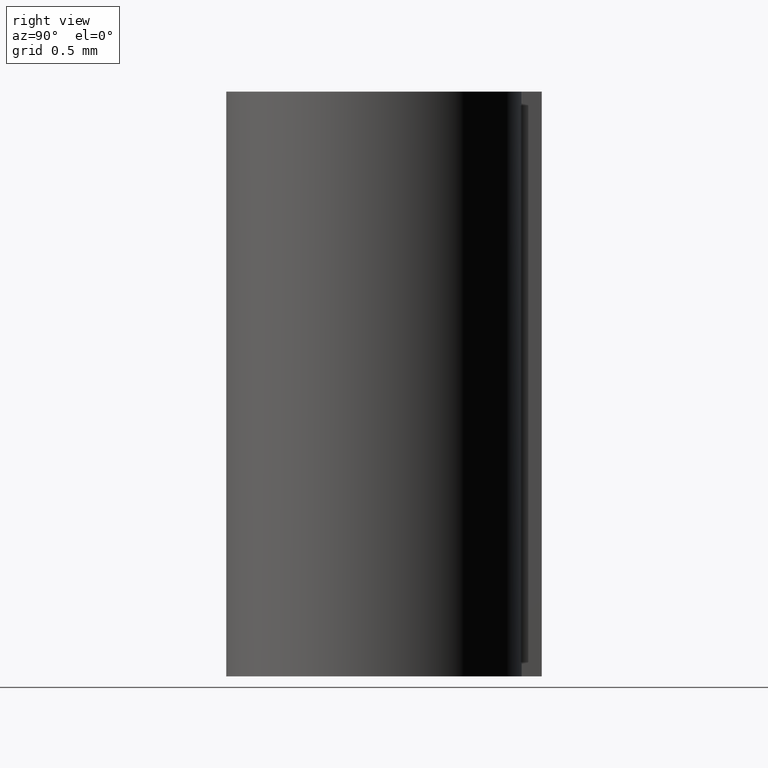
[diagram: clean part render]
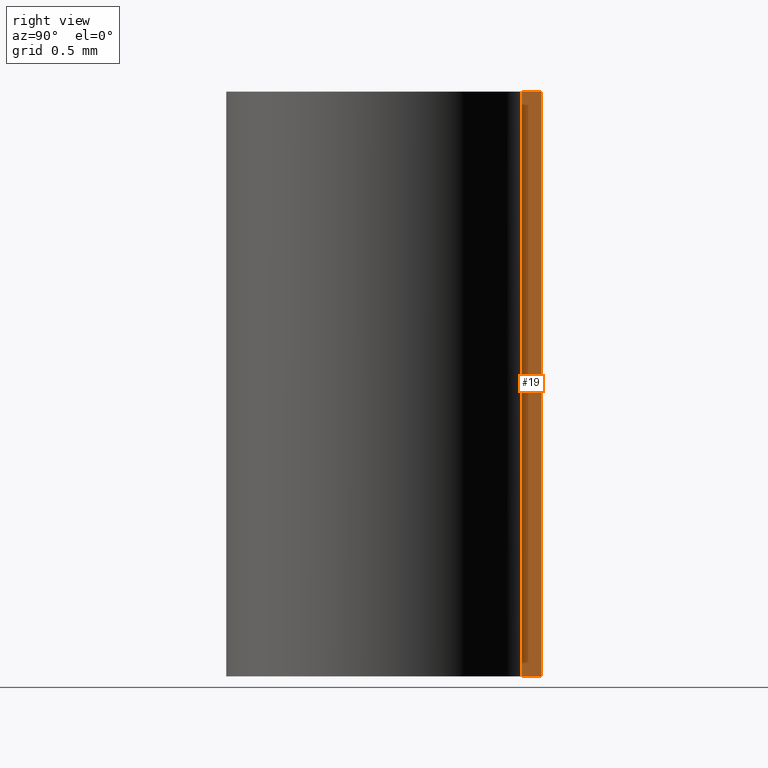
[diagram: same view with one face highlighted and labeled with its STEP entity id]
A machine part, right view. The second image highlights one B-rep face of the part: STEP entity #19.
In plain terms, the highlighted planar face has unit normal (0.9998, 0.0196, -0).
Its self-contained STEP definition (entity closure, byte-faithful):
#19 = ADVANCED_FACE ( 'NONE', ( #948 ), #189, .T. ) ;
#29 = EDGE_LOOP ( 'NONE', ( #711, #98, #404, #87 ) ) ;
#38 = DIRECTION ( 'NONE',  ( 0.0000000000000000000, 0.0000000000000000000, 1.000000000000000000 ) ) ;
#59 = VERTEX_POINT ( 'NONE', #556 ) ;
#82 = CARTESIAN_POINT ( 'NONE',  ( 0.002662003853540723800, 0.9777760549388829800, 1.333333333333333300 ) ) ;
#85 = LINE ( 'NONE', #559, #292 ) ;
#87 = ORIENTED_EDGE ( 'NONE', *, *, #162, .F. ) ;
#98 = ORIENTED_EDGE ( 'NONE', *, *, #723, .T. ) ;
#100 = VERTEX_POINT ( 'NONE', #247 ) ;
#108 = DIRECTION ( 'NONE',  ( 0.01957355774662361200, -0.9998084195670385900, 0.0000000000000000000 ) ) ;
#119 = DIRECTION ( 'NONE',  ( 0.01957355774662361200, -0.9998084195670385900, 0.0000000000000000000 ) ) ;
#162 = EDGE_CURVE ( 'NONE', #100, #59, #820, .T. ) ;
#189 = PLANE ( 'NONE',  #278 ) ;
#237 = LINE ( 'NONE', #842, #848 ) ;
#247 = CARTESIAN_POINT ( 'NONE',  ( 0.002662003853540723800, 0.9777760549388829800, 0.0000000000000000000 ) ) ;
#278 = AXIS2_PLACEMENT_3D ( 'NONE', #847, #406, #38 ) ;
#292 = VECTOR ( 'NONE', #119, 1000.000000000000100 ) ;
#310 = VERTEX_POINT ( 'NONE', #737 ) ;
#337 = DIRECTION ( 'NONE',  ( 0.0000000000000000000, 0.0000000000000000000, 1.000000000000000000 ) ) ;
#404 = ORIENTED_EDGE ( 'NONE', *, *, #498, .T. ) ;
#406 = DIRECTION ( 'NONE',  ( 0.9998084195670387000, 0.01957355774662361500, -0.0000000000000000000 ) ) ;
#452 = CARTESIAN_POINT ( 'NONE',  ( 0.002662003853540723800, 0.9777760549388829800, 4.000000000000000000 ) ) ;
#498 = EDGE_CURVE ( 'NONE', #310, #59, #672, .T. ) ;
#520 = CARTESIAN_POINT ( 'NONE',  ( 0.002662003853540723800, 0.9777760549388829800, 2.666666666666666500 ) ) ;
#556 = CARTESIAN_POINT ( 'NONE',  ( 0.002662003853540723800, 0.9777760549388829800, 4.000000000000000000 ) ) ;
#559 = CARTESIAN_POINT ( 'NONE',  ( -8.792005455195680700E-017, 1.113750000000000200, 0.0000000000000000000 ) ) ;
#629 = CARTESIAN_POINT ( 'NONE',  ( -8.792005455195680700E-017, 1.113750000000000200, 4.000000000000000000 ) ) ;
#672 = LINE ( 'NONE', #629, #937 ) ;
#711 = ORIENTED_EDGE ( 'NONE', *, *, #933, .F. ) ;
#723 = EDGE_CURVE ( 'NONE', #925, #310, #237, .T. ) ;
#737 = CARTESIAN_POINT ( 'NONE',  ( -8.792005455195680700E-017, 1.113750000000000200, 4.000000000000000000 ) ) ;
#781 = CARTESIAN_POINT ( 'NONE',  ( -8.792005455195680700E-017, 1.113750000000000200, 0.0000000000000000000 ) ) ;
#820 = B_SPLINE_CURVE_WITH_KNOTS ( 'NONE', 3,
 ( #884, #82, #520, #452 ),
 .UNSPECIFIED., .F., .F.,
 ( 4, 4 ),
 ( 2.775557561562891400E-017, 1.000000000000000000 ),
 .UNSPECIFIED. ) ;
#842 = CARTESIAN_POINT ( 'NONE',  ( -8.792005455195680700E-017, 1.113750000000000200, 2.000000000000000000 ) ) ;
#847 = CARTESIAN_POINT ( 'NONE',  ( -8.792005455195680700E-017, 1.113750000000000200, 0.0000000000000000000 ) ) ;
#848 = VECTOR ( 'NONE', #337, 1000.000000000000000 ) ;
#884 = CARTESIAN_POINT ( 'NONE',  ( 0.002662003853540723800, 0.9777760549388829800, 0.0000000000000000000 ) ) ;
#925 = VERTEX_POINT ( 'NONE', #781 ) ;
#933 = EDGE_CURVE ( 'NONE', #925, #100, #85, .T. ) ;
#937 = VECTOR ( 'NONE', #108, 1000.000000000000100 ) ;
#948 = FACE_OUTER_BOUND ( 'NONE', #29, .T. ) ;